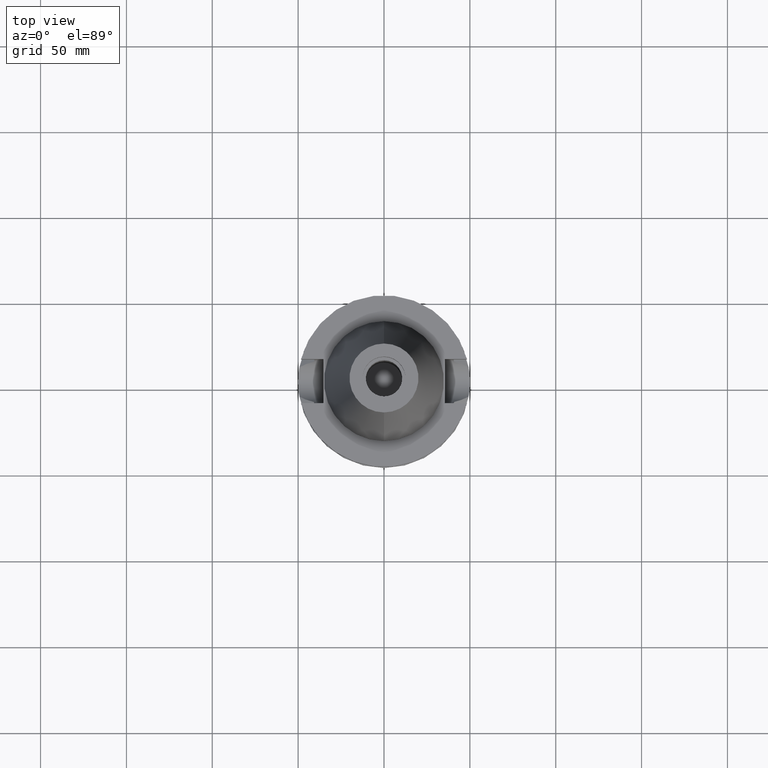
[diagram: clean part render]
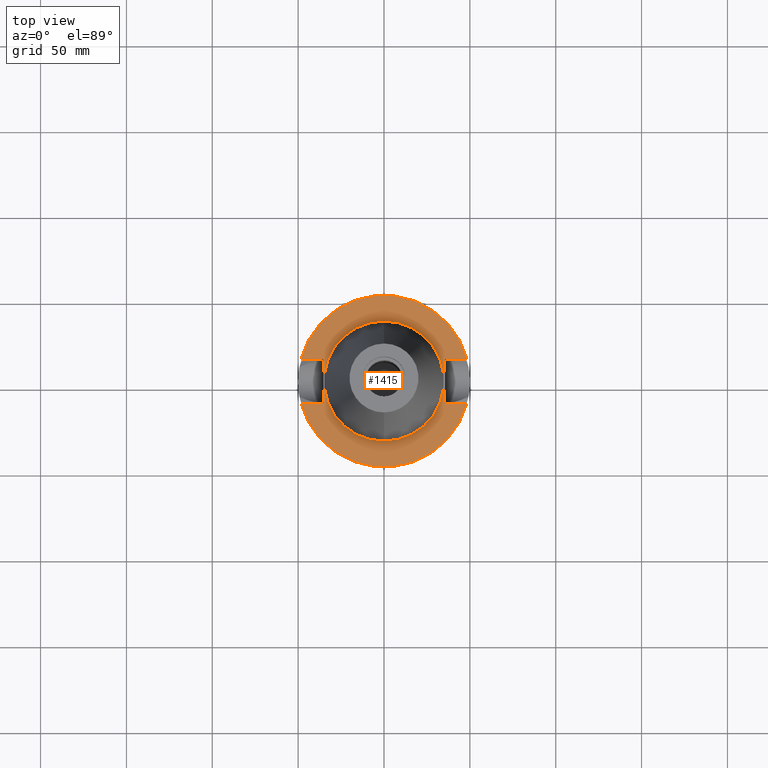
[diagram: same view with one face highlighted and labeled with its STEP entity id]
A machine part, top view. The second image highlights one B-rep face of the part: STEP entity #1415.
In plain terms, the highlighted planar face has unit normal (0, 0, -1).
Its self-contained STEP definition (entity closure, byte-faithful):
#20 = CARTESIAN_POINT ( 'NONE',  ( 35.39999999999999858, -12.84999999999999964, -3.000000000000000000 ) ) ;
#68 = EDGE_CURVE ( 'NONE', #2364, #2434, #3436, .T. ) ;
#75 = EDGE_CURVE ( 'NONE', #2028, #881, #1253, .T. ) ;
#80 = AXIS2_PLACEMENT_3D ( 'NONE', #2678, #1817, #1872 ) ;
#156 = DIRECTION ( 'NONE',  ( 0.0000000000000000000, -1.000000000000000000, 0.0000000000000000000 ) ) ;
#190 = CARTESIAN_POINT ( 'NONE',  ( -35.39999999999999858, -12.84999999999999964, -3.000000000000000000 ) ) ;
#194 = CIRCLE ( 'NONE', #2911, 34.92499999999999716 ) ;
#207 = EDGE_CURVE ( 'NONE', #881, #1610, #3303, .T. ) ;
#220 = ORIENTED_EDGE ( 'NONE', *, *, #75, .F. ) ;
#260 = VECTOR ( 'NONE', #3343, 1000.000000000000000 ) ;
#269 = DIRECTION ( 'NONE',  ( 0.0000000000000000000, -1.000000000000000000, 0.0000000000000000000 ) ) ;
#290 = ORIENTED_EDGE ( 'NONE', *, *, #886, .F. ) ;
#302 = ORIENTED_EDGE ( 'NONE', *, *, #2641, .F. ) ;
#350 = ORIENTED_EDGE ( 'NONE', *, *, #1467, .T. ) ;
#594 = CARTESIAN_POINT ( 'NONE',  ( 0.0000000000000000000, 2.712470195431000112E-14, -3.000000000000000000 ) ) ;
#616 = CARTESIAN_POINT ( 'NONE',  ( 48.32057015392000210, 12.84999999999999964, -3.000000000000000000 ) ) ;
#661 = EDGE_CURVE ( 'NONE', #3406, #841, #831, .T. ) ;
#755 = LINE ( 'NONE', #2121, #3455 ) ;
#810 = LINE ( 'NONE', #2806, #1355 ) ;
#815 = VECTOR ( 'NONE', #2097, 1000.000000000000000 ) ;
#831 = CIRCLE ( 'NONE', #1531, 34.92499999999999716 ) ;
#841 = VERTEX_POINT ( 'NONE', #1981 ) ;
#881 = VERTEX_POINT ( 'NONE', #1694 ) ;
#886 = EDGE_CURVE ( 'NONE', #2962, #2364, #810, .T. ) ;
#889 = DIRECTION ( 'NONE',  ( 0.0000000000000000000, -1.000000000000000000, 0.0000000000000000000 ) ) ;
#903 = CARTESIAN_POINT ( 'NONE',  ( -35.39999999999999858, -12.84999999999999964, -3.000000000000000000 ) ) ;
#924 = DIRECTION ( 'NONE',  ( 0.0000000000000000000, 1.000000000000000000, 0.0000000000000000000 ) ) ;
#969 = VERTEX_POINT ( 'NONE', #903 ) ;
#976 = CARTESIAN_POINT ( 'NONE',  ( 35.39999999999999858, 12.84999999999999964, -3.000000000000000000 ) ) ;
#1094 = CARTESIAN_POINT ( 'NONE',  ( 0.0000000000000000000, 2.712470195431000112E-14, -3.000000000000000000 ) ) ;
#1099 = DIRECTION ( 'NONE',  ( 0.0000000000000000000, 0.0000000000000000000, -1.000000000000000000 ) ) ;
#1109 = DIRECTION ( 'NONE',  ( 0.0000000000000000000, -1.000000000000000000, 0.0000000000000000000 ) ) ;
#1253 = LINE ( 'NONE', #976, #1932 ) ;
#1259 = ORIENTED_EDGE ( 'NONE', *, *, #2861, .F. ) ;
#1293 = CARTESIAN_POINT ( 'NONE',  ( 35.39999999999999858, 12.84999999999999964, -3.000000000000000000 ) ) ;
#1355 = VECTOR ( 'NONE', #1920, 1000.000000000000000 ) ;
#1391 = DIRECTION ( 'NONE',  ( 0.0000000000000000000, 0.0000000000000000000, 1.000000000000000000 ) ) ;
#1415 = ADVANCED_FACE ( 'NONE', ( #2503, #1657 ), #2237, .F. ) ;
#1421 = ORIENTED_EDGE ( 'NONE', *, *, #3291, .T. ) ;
#1467 = EDGE_CURVE ( 'NONE', #2028, #2434, #2212, .T. ) ;
#1531 = AXIS2_PLACEMENT_3D ( 'NONE', #2307, #3179, #924 ) ;
#1610 = VERTEX_POINT ( 'NONE', #3230 ) ;
#1657 = FACE_BOUND ( 'NONE', #3367, .T. ) ;
#1686 = ORIENTED_EDGE ( 'NONE', *, *, #661, .F. ) ;
#1694 = CARTESIAN_POINT ( 'NONE',  ( 35.39999999999999858, -12.84999999999999964, -3.000000000000000000 ) ) ;
#1710 = DIRECTION ( 'NONE',  ( 0.0000000000000000000, 0.0000000000000000000, -1.000000000000000000 ) ) ;
#1817 = DIRECTION ( 'NONE',  ( 0.0000000000000000000, 0.0000000000000000000, -1.000000000000000000 ) ) ;
#1872 = DIRECTION ( 'NONE',  ( 0.0000000000000000000, 1.000000000000000000, 0.0000000000000000000 ) ) ;
#1911 = ORIENTED_EDGE ( 'NONE', *, *, #68, .F. ) ;
#1920 = DIRECTION ( 'NONE',  ( -1.000000000000000000, 0.0000000000000000000, 0.0000000000000000000 ) ) ;
#1932 = VECTOR ( 'NONE', #156, 1000.000000000000000 ) ;
#1981 = CARTESIAN_POINT ( 'NONE',  ( 0.0000000000000000000, -34.92499999999999716, -3.000000000000000000 ) ) ;
#1984 = CARTESIAN_POINT ( 'NONE',  ( 0.0000000000000000000, 1.187907395172999884E-14, -3.000000000000000000 ) ) ;
#2028 = VERTEX_POINT ( 'NONE', #1293 ) ;
#2097 = DIRECTION ( 'NONE',  ( -1.000000000000000000, 0.0000000000000000000, 0.0000000000000000000 ) ) ;
#2107 = VECTOR ( 'NONE', #2425, 1000.000000000000000 ) ;
#2121 = CARTESIAN_POINT ( 'NONE',  ( -35.39999999999999858, -12.84999999999999964, -3.000000000000000000 ) ) ;
#2212 = LINE ( 'NONE', #2539, #260 ) ;
#2215 = AXIS2_PLACEMENT_3D ( 'NONE', #594, #1710, #269 ) ;
#2219 = CARTESIAN_POINT ( 'NONE',  ( 0.0000000000000000000, 34.92499999999999716, -3.000000000000000000 ) ) ;
#2227 = CARTESIAN_POINT ( 'NONE',  ( -35.39999999999999858, 12.84999999999999964, -3.000000000000000000 ) ) ;
#2237 = PLANE ( 'NONE',  #2344 ) ;
#2307 = CARTESIAN_POINT ( 'NONE',  ( 0.0000000000000000000, 2.712470195431000112E-14, -3.000000000000000000 ) ) ;
#2344 = AXIS2_PLACEMENT_3D ( 'NONE', #1984, #1099, #889 ) ;
#2364 = VERTEX_POINT ( 'NONE', #3092 ) ;
#2425 = DIRECTION ( 'NONE',  ( 1.000000000000000000, 0.0000000000000000000, 0.0000000000000000000 ) ) ;
#2434 = VERTEX_POINT ( 'NONE', #616 ) ;
#2503 = FACE_OUTER_BOUND ( 'NONE', #3164, .T. ) ;
#2539 = CARTESIAN_POINT ( 'NONE',  ( 35.39999999999999858, 12.84999999999999964, -3.000000000000000000 ) ) ;
#2641 = EDGE_CURVE ( 'NONE', #969, #2962, #755, .T. ) ;
#2678 = CARTESIAN_POINT ( 'NONE',  ( 0.0000000000000000000, 2.712470195431000112E-14, -3.000000000000000000 ) ) ;
#2806 = CARTESIAN_POINT ( 'NONE',  ( -35.39999999999999858, 12.84999999999999964, -3.000000000000000000 ) ) ;
#2861 = EDGE_CURVE ( 'NONE', #841, #3406, #194, .T. ) ;
#2911 = AXIS2_PLACEMENT_3D ( 'NONE', #1094, #1391, #1109 ) ;
#2926 = EDGE_CURVE ( 'NONE', #1610, #3256, #3380, .T. ) ;
#2962 = VERTEX_POINT ( 'NONE', #2227 ) ;
#3048 = ORIENTED_EDGE ( 'NONE', *, *, #2926, .F. ) ;
#3049 = ORIENTED_EDGE ( 'NONE', *, *, #207, .F. ) ;
#3092 = CARTESIAN_POINT ( 'NONE',  ( -48.32057015392000210, 12.84999999999999964, -3.000000000000000000 ) ) ;
#3164 = EDGE_LOOP ( 'NONE', ( #1421, #3048, #3049, #220, #350, #1911, #290, #302 ) ) ;
#3179 = DIRECTION ( 'NONE',  ( 0.0000000000000000000, 0.0000000000000000000, 1.000000000000000000 ) ) ;
#3222 = CARTESIAN_POINT ( 'NONE',  ( -48.32057015392000210, -12.84999999999999964, -3.000000000000000000 ) ) ;
#3230 = CARTESIAN_POINT ( 'NONE',  ( 48.32057015392000210, -12.84999999999999964, -3.000000000000000000 ) ) ;
#3256 = VERTEX_POINT ( 'NONE', #3222 ) ;
#3291 = EDGE_CURVE ( 'NONE', #969, #3256, #3514, .T. ) ;
#3303 = LINE ( 'NONE', #20, #2107 ) ;
#3343 = DIRECTION ( 'NONE',  ( 1.000000000000000000, 0.0000000000000000000, 0.0000000000000000000 ) ) ;
#3367 = EDGE_LOOP ( 'NONE', ( #1259, #1686 ) ) ;
#3380 = CIRCLE ( 'NONE', #2215, 50.00000000000000000 ) ;
#3406 = VERTEX_POINT ( 'NONE', #2219 ) ;
#3436 = CIRCLE ( 'NONE', #80, 50.00000000000000000 ) ;
#3455 = VECTOR ( 'NONE', #3497, 1000.000000000000000 ) ;
#3497 = DIRECTION ( 'NONE',  ( 0.0000000000000000000, 1.000000000000000000, 0.0000000000000000000 ) ) ;
#3514 = LINE ( 'NONE', #190, #815 ) ;